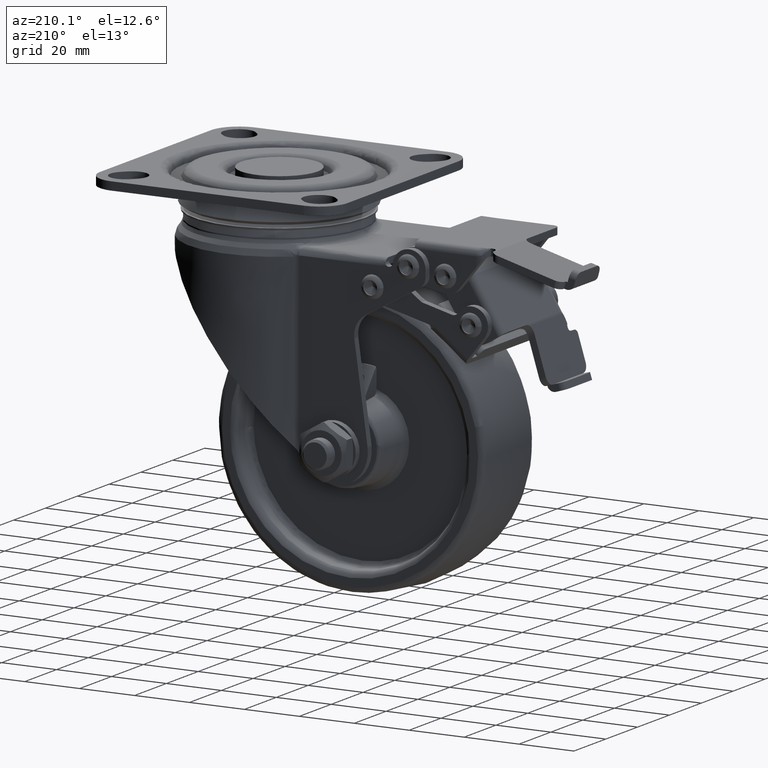
[diagram: clean part render]
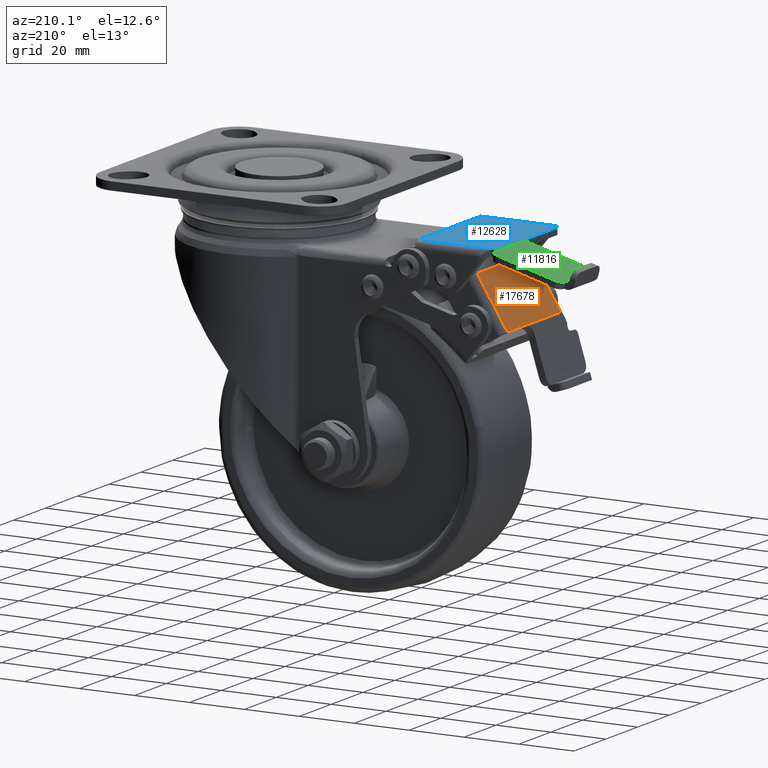
[diagram: same view with three faces highlighted in distinct colors, each labeled with its STEP entity id]
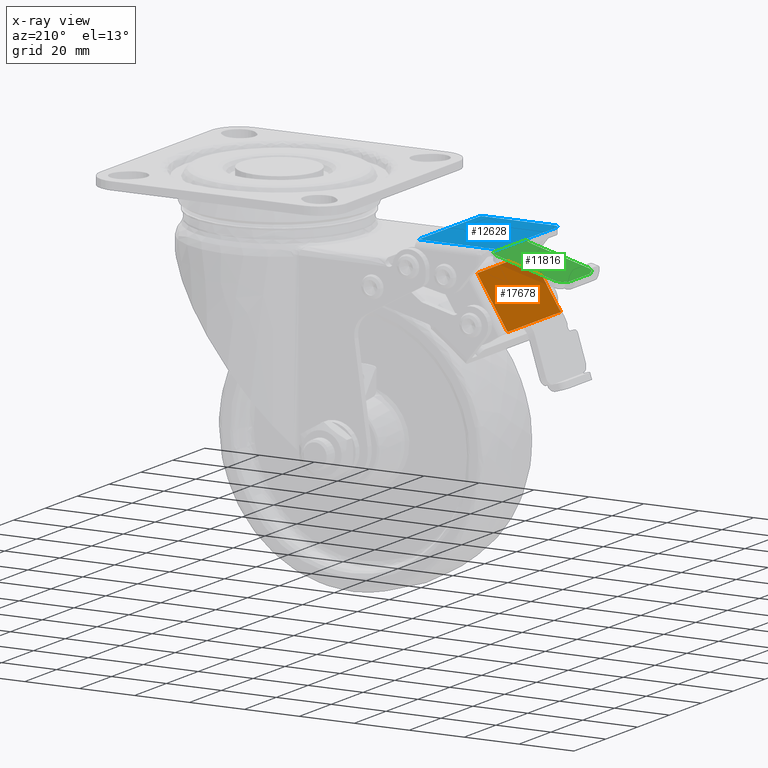
[diagram: x-ray of the same camera — body ghosted, the three highlighted faces saturated]
A machine part, auxiliary view with three faces highlighted in distinct colors.
The next image is the same camera in x-ray (body ghosted, the three faces saturated) — at least one of them is partly hidden behind the body in this view.
Their STEP definitions:

[orange] entity #17678 — the highlighted face is a freeform B-spline surface patch.
#15594=CARTESIAN_POINT('',(-92.926896708605796,-16.489999999999998,-39.738462908418697));
#15595=VERTEX_POINT('',#15594);
#15741=CARTESIAN_POINT('',(-92.926896708605796,5.338428767809099,-39.738462908418697));
#15742=VERTEX_POINT('',#15741);
#15743=CARTESIAN_POINT('',(-92.926896708605796,5.338428767809099,-39.738462908418697));
#15744=CARTESIAN_POINT('',(-92.926896708605796,-16.489999999999998,-39.738462908418697));
#15745=QUASI_UNIFORM_CURVE('',1,(#15743,#15744),.UNSPECIFIED.,.F.,.U.);
#15746=EDGE_CURVE('',#15742,#15595,#15745,.T.);
#15917=CARTESIAN_POINT('',(-81.828292846612598,-16.489999999999998,-21.976984539995051));
#15918=VERTEX_POINT('',#15917);
#16056=CARTESIAN_POINT('',(-92.926896708605796,-16.489999999999998,-39.738462908418697));
#16057=CARTESIAN_POINT('',(-81.828292846612598,-16.489999999999998,-21.976984539995051));
#16058=QUASI_UNIFORM_CURVE('',1,(#16056,#16057),.UNSPECIFIED.,.F.,.U.);
#16059=EDGE_CURVE('',#15595,#15918,#16058,.T.);
#17174=CARTESIAN_POINT('',(-81.828292846612598,16.989999999999998,-21.976984539995051));
#17175=VERTEX_POINT('',#17174);
#17176=CARTESIAN_POINT('',(-81.828292846612598,16.989999999999998,-21.976984539995051));
#17177=CARTESIAN_POINT('',(-81.828292846612598,-16.489999999999998,-21.976984539995051));
#17178=QUASI_UNIFORM_CURVE('',1,(#17176,#17177),.UNSPECIFIED.,.F.,.U.);
#17179=EDGE_CURVE('',#17175,#15918,#17178,.T.);
#17602=CARTESIAN_POINT('',(-92.924919414313393,16.989999999999998,-39.735298576198247));
#17603=VERTEX_POINT('',#17602);
#17619=CARTESIAN_POINT('',(-81.828292846612598,16.989999999999998,-21.976984539995051));
#17620=CARTESIAN_POINT('',(-92.924919414313393,16.989999999999998,-39.735298576198247));
#17621=QUASI_UNIFORM_CURVE('',1,(#17619,#17620),.UNSPECIFIED.,.F.,.U.);
#17622=EDGE_CURVE('',#17175,#17603,#17621,.T.);
#17647=CARTESIAN_POINT('',(-93.481271950001172,-18.162325935109269,-40.625648718496251));
#17648=CARTESIAN_POINT('',(-81.273917307529544,-18.162325935109269,-21.089798253517490));
#17649=CARTESIAN_POINT('',(-93.481271950001172,18.662326833112839,-40.625648718496251));
#17650=CARTESIAN_POINT('',(-81.273917307529544,18.662326833112839,-21.089798253517490));
#17651=B_SPLINE_SURFACE_WITH_KNOTS('',1,1,((#17647,#17649),(#17648,#17650)),.UNSPECIFIED.,.F.,.F.,.U.,(2,2),(2,2),(0.0,23.036253183994241),(0.0,36.824652768222109),.UNSPECIFIED.);
#17652=CARTESIAN_POINT('',(-92.924919414313493,5.500000000000000,-39.735298576198304));
#17653=VERTEX_POINT('',#17652);
#17654=CARTESIAN_POINT('',(-92.924919414313393,16.989999999999998,-39.735298576198247));
#17655=CARTESIAN_POINT('',(-92.924919414313493,5.500000000000000,-39.735298576198304));
#17656=QUASI_UNIFORM_CURVE('',1,(#17654,#17655),.UNSPECIFIED.,.F.,.U.);
#17657=EDGE_CURVE('',#17603,#17653,#17656,.T.);
#17658=ORIENTED_EDGE('',*,*,#17657,.T.);
#17659=CARTESIAN_POINT('',(-92.924919414313365,5.500000000000000,-39.735298576198197));
#17660=CARTESIAN_POINT('',(-92.924919414313365,5.419171298601151,-39.735298576198197));
#17661=CARTESIAN_POINT('',(-92.926896708605810,5.338428767809099,-39.738462908418697));
#17669=(BOUNDED_CURVE()B_SPLINE_CURVE(2,(#17659,#17660,#17661),.UNSPECIFIED.,.F.,.U.)CURVE()GEOMETRIC_REPRESENTATION_ITEM()QUASI_UNIFORM_CURVE()RATIONAL_B_SPLINE_CURVE((1.0,0.999733442169759,1.0))REPRESENTATION_ITEM(''));
#17670=EDGE_CURVE('',#17653,#15742,#17669,.T.);
#17671=ORIENTED_EDGE('',*,*,#17670,.T.);
#17672=ORIENTED_EDGE('',*,*,#15746,.T.);
#17673=ORIENTED_EDGE('',*,*,#16059,.T.);
#17674=ORIENTED_EDGE('',*,*,#17179,.F.);
#17675=ORIENTED_EDGE('',*,*,#17622,.T.);
#17676=EDGE_LOOP('',(#17658,#17671,#17672,#17673,#17674,#17675));
#17677=FACE_OUTER_BOUND('',#17676,.T.);
#17678=ADVANCED_FACE('',(#17677),#17651,.T.);

[blue] entity #12628 — the highlighted face is a freeform B-spline surface patch.
#12351=CARTESIAN_POINT('',(-92.448516706565556,-21.553380074717150,-12.800003254672649));
#12352=CARTESIAN_POINT('',(-91.148513334358199,-21.553380074717150,-12.800001792344480));
#12353=CARTESIAN_POINT('',(-89.848509962150800,-21.553380074717150,-12.800000608998131));
#12354=CARTESIAN_POINT('',(-88.548506589943386,-21.553380074717161,-12.800000684872909));
#12355=CARTESIAN_POINT('',(-88.445089834938216,-21.553380074717161,-12.800000400009420));
#12356=CARTESIAN_POINT('',(-88.341673079933017,-21.553380074717161,-12.800000144731790));
#12357=CARTESIAN_POINT('',(-88.238256324927761,-21.553380074717161,-12.800000300038541));
#12358=CARTESIAN_POINT('',(-88.086494589790362,-21.553380074717161,-12.799999475303590));
#12359=CARTESIAN_POINT('',(-87.782971119515494,-21.553380074717150,-12.799999648287219));
#12360=CARTESIAN_POINT('',(-87.327685914103171,-21.553380074717161,-12.800000221750221));
#12361=CARTESIAN_POINT('',(-86.872400708690847,-21.553380074717172,-12.800000289422989));
#12362=CARTESIAN_POINT('',(-85.961830297866186,-21.553380074717161,-12.800000409412039));
#12363=CARTESIAN_POINT('',(-83.988927741079493,-21.553380074717172,-12.799999902945830));
#12364=CARTESIAN_POINT('',(-79.739599157231254,-21.553380074717161,-12.799996548530260));
#12365=CARTESIAN_POINT('',(-71.724758037286861,-21.553380074717179,-12.799986696909670));
#12366=CARTESIAN_POINT('',(-64.924010798442026,-21.553380074717150,-12.799994705632271));
#12367=CARTESIAN_POINT('',(-60.551451321796101,-21.553380074717150,-12.799995424689151));
#12368=CARTESIAN_POINT('',(-92.448516706565471,-14.062910271515991,-12.799991244901920));
#12369=CARTESIAN_POINT('',(-91.148513334358157,-14.062910271515991,-12.799986848815880));
#12370=CARTESIAN_POINT('',(-89.848509962150885,-14.062910271515999,-12.799982019413781));
#12371=CARTESIAN_POINT('',(-88.548506589943514,-14.062910271515999,-12.799979644204670));
#12372=CARTESIAN_POINT('',(-88.445089834938315,-14.062910271515999,-12.799978500105929));
#12373=CARTESIAN_POINT('',(-88.341673079933145,-14.062910271515999,-12.799977429046020));
#12374=CARTESIAN_POINT('',(-88.238256324927889,-14.062910271515999,-12.799976378183461));
#12375=CARTESIAN_POINT('',(-88.086494589790448,-14.062910271515999,-12.799974626386780));
#12376=CARTESIAN_POINT('',(-87.782971119515580,-14.062910271515999,-12.799974164914740));
#12377=CARTESIAN_POINT('',(-87.327685914103228,-14.062910271515999,-12.799974229766470));
#12378=CARTESIAN_POINT('',(-86.872400708690904,-14.062910271515999,-12.799972621656970));
#12379=CARTESIAN_POINT('',(-85.961830297866271,-14.062910271515999,-12.799968921903130));
#12380=CARTESIAN_POINT('',(-83.988927741079550,-14.062910271515991,-12.799958704358239));
#12381=CARTESIAN_POINT('',(-79.739599157231311,-14.062910271515969,-12.799924120657510));
#12382=CARTESIAN_POINT('',(-71.724758037286847,-14.062910271516021,-12.799954601302501));
#12383=CARTESIAN_POINT('',(-64.924010798442126,-14.062910271515991,-12.799999300975280));
#12384=CARTESIAN_POINT('',(-60.551451321796193,-14.062910271515991,-12.799994847423861));
#12385=CARTESIAN_POINT('',(-92.448516706565641,-2.486399821839746,-12.800007727671710));
#12386=CARTESIAN_POINT('',(-91.148513334358171,-2.486399821839745,-12.800000212391510));
#12387=CARTESIAN_POINT('',(-89.848509962150672,-2.486399821839743,-12.799991419989681));
#12388=CARTESIAN_POINT('',(-88.548506589943315,-2.486399821839745,-12.800003496332179));
#12389=CARTESIAN_POINT('',(-88.445089834938102,-2.486399821839744,-12.800008715635959));
#12390=CARTESIAN_POINT('',(-88.341673079932917,-2.486399821839745,-12.800013452575570));
#12391=CARTESIAN_POINT('',(-88.238256324927704,-2.486399821839745,-12.800018028712730));
#12392=CARTESIAN_POINT('',(-88.086494589790263,-2.486399821839745,-12.800026071003650));
#12393=CARTESIAN_POINT('',(-87.782971119515395,-2.486399821839746,-12.800022762090309));
#12394=CARTESIAN_POINT('',(-87.327685914103071,-2.486399821839747,-12.800012374302140));
#12395=CARTESIAN_POINT('',(-86.872400708690776,-2.486399821839748,-12.800011880645229));
#12396=CARTESIAN_POINT('',(-85.961830297866143,-2.486399821839750,-12.800012106637469));
#12397=CARTESIAN_POINT('',(-83.988927741079451,-2.486399821839758,-12.800021388760840));
#12398=CARTESIAN_POINT('',(-79.739599157231240,-2.486399821839765,-12.800111722636039));
#12399=CARTESIAN_POINT('',(-71.724758037286961,-2.486399821839743,-12.800241105627300));
#12400=CARTESIAN_POINT('',(-64.924010798442012,-2.486399821839752,-12.800036539097070));
#12401=CARTESIAN_POINT('',(-60.551451321796151,-2.486399821839744,-12.799968073387721));
#12402=CARTESIAN_POINT('',(-92.448516706565641,10.111620789455269,-12.799809031613609));
#12403=CARTESIAN_POINT('',(-91.148513334358228,10.111620789455269,-12.799997344229601));
#12404=CARTESIAN_POINT('',(-89.848509962150857,10.111620789455269,-12.800125081137390));
#12405=CARTESIAN_POINT('',(-88.548506589943457,10.111620789455269,-12.800156229851281));
#12406=CARTESIAN_POINT('',(-88.445089834938258,10.111620789455269,-12.800149408089160));
#12407=CARTESIAN_POINT('',(-88.341673079933059,10.111620789455269,-12.800143327114460));
#12408=CARTESIAN_POINT('',(-88.238256324927846,10.111620789455269,-12.800137292803781));
#12409=CARTESIAN_POINT('',(-88.086494589790405,10.111620789455269,-12.800125531550631));
#12410=CARTESIAN_POINT('',(-87.782971119515523,10.111620789455269,-12.800143139085110));
#12411=CARTESIAN_POINT('',(-87.327685914103213,10.111620789455269,-12.800177505623649));
#12412=CARTESIAN_POINT('',(-86.872400708690904,10.111620789455269,-12.800187056939180));
#12413=CARTESIAN_POINT('',(-85.961830297866257,10.111620789455261,-12.800193478881869));
#12414=CARTESIAN_POINT('',(-83.988927741079564,10.111620789455269,-12.800175084556550));
#12415=CARTESIAN_POINT('',(-79.739599157231297,10.111620789455261,-12.799711695243911));
#12416=CARTESIAN_POINT('',(-71.724758037286918,10.111620789455261,-12.799884385752870));
#12417=CARTESIAN_POINT('',(-64.924010798442083,10.111620789455261,-12.799970187887171));
#12418=CARTESIAN_POINT('',(-60.551451321796200,10.111620789455269,-12.800008162696320));
#12419=CARTESIAN_POINT('',(-92.448516706565613,15.729926678358479,-12.799669861854980));
#12420=CARTESIAN_POINT('',(-91.148513334358228,15.729926678358479,-12.799965378341220));
#12421=CARTESIAN_POINT('',(-89.848509962150871,15.729926678358471,-12.800296095294570));
#12422=CARTESIAN_POINT('',(-88.548506589943415,15.729926678358471,-12.800433152265180));
#12423=CARTESIAN_POINT('',(-88.445089834938202,15.729926678358479,-12.800466701378900));
#12424=CARTESIAN_POINT('',(-88.341673079933017,15.729926678358471,-12.800495819336209));
#12425=CARTESIAN_POINT('',(-88.238256324927818,15.729926678358471,-12.800522171241330));
#12426=CARTESIAN_POINT('',(-88.086494589790348,15.729926678358471,-12.800567942774331));
#12427=CARTESIAN_POINT('',(-87.782971119515466,15.729926678358471,-12.800547662638181));
#12428=CARTESIAN_POINT('',(-87.327685914103157,15.729926678358471,-12.800464346874410));
#12429=CARTESIAN_POINT('',(-86.872400708690847,15.729926678358471,-12.800409355669180));
#12430=CARTESIAN_POINT('',(-85.961830297866214,15.729926678358471,-12.800277775661661));
#12431=CARTESIAN_POINT('',(-83.988927741079493,15.729926678358471,-12.799781950128720));
#12432=CARTESIAN_POINT('',(-79.739599157231339,15.729926678358490,-12.799716980132811));
#12433=CARTESIAN_POINT('',(-71.724758037286790,15.729926678358430,-12.800020029500320));
#12434=CARTESIAN_POINT('',(-64.924010798442097,15.729926678358510,-12.799971886053410));
#12435=CARTESIAN_POINT('',(-60.551451321796172,15.729926678358479,-12.799999222254760));
#12436=CARTESIAN_POINT('',(-92.448516706565556,17.772947001596009,-12.799669638770730));
#12437=CARTESIAN_POINT('',(-91.148513334358128,17.772947001596009,-12.799942374172421));
#12438=CARTESIAN_POINT('',(-89.848509962150743,17.772947001596009,-12.800206972193809));
#12439=CARTESIAN_POINT('',(-88.548506589943386,17.772947001596020,-12.800733306774720));
#12440=CARTESIAN_POINT('',(-88.445089834938202,17.772947001596009,-12.800674783139840));
#12441=CARTESIAN_POINT('',(-88.341673079932988,17.772947001596009,-12.800623318988089));
#12442=CARTESIAN_POINT('',(-88.238256324927775,17.772947001596009,-12.800570354863730));
#12443=CARTESIAN_POINT('',(-88.086494589790348,17.772947001596009,-12.800466572349050));
#12444=CARTESIAN_POINT('',(-87.782971119515437,17.772947001596009,-12.800619307853680));
#12445=CARTESIAN_POINT('',(-87.327685914103157,17.772947001596009,-12.800852917143070));
#12446=CARTESIAN_POINT('',(-86.872400708690847,17.772947001596009,-12.800789724201181));
#12447=CARTESIAN_POINT('',(-85.961830297866129,17.772947001595998,-12.800379518338010));
#12448=CARTESIAN_POINT('',(-83.988927741079493,17.772947001595998,-12.799365244253110));
#12449=CARTESIAN_POINT('',(-79.739599157231339,17.772947001596020,-12.800064383518180));
#12450=CARTESIAN_POINT('',(-71.724758037286747,17.772947001595949,-12.799924313873881));
#12451=CARTESIAN_POINT('',(-64.924010798442183,17.772947001596052,-12.799995914373779));
#12452=CARTESIAN_POINT('',(-60.551451321796179,17.772947001596009,-12.800005733925540));
#12453=CARTESIAN_POINT('',(-92.448516706565584,19.305212244024158,-12.799687119705441));
#12454=CARTESIAN_POINT('',(-91.148513334358199,19.305212244024158,-12.800005762842121));
#12455=CARTESIAN_POINT('',(-89.848509962150857,19.305212244024169,-12.800276187554379));
#12456=CARTESIAN_POINT('',(-88.548506589943457,19.305212244024158,-12.799605331533749));
#12457=CARTESIAN_POINT('',(-88.445089834938145,19.305212244024169,-12.800265279724639));
#12458=CARTESIAN_POINT('',(-88.341673079933031,19.305212244024158,-12.800453956883461));
#12459=CARTESIAN_POINT('',(-88.238256324927775,19.305212244024158,-12.800980669567680));
#12460=CARTESIAN_POINT('',(-88.086494589790348,19.305212244024151,-12.800970492596070));
#12461=CARTESIAN_POINT('',(-87.782971119515381,19.305212244024140,-12.801083886655681));
#12462=CARTESIAN_POINT('',(-87.327685914103114,19.305212244024158,-12.800748595777520));
#12463=CARTESIAN_POINT('',(-86.872400708690762,19.305212244024140,-12.800807796012551));
#12464=CARTESIAN_POINT('',(-85.961830297866300,19.305212244024140,-12.800352265725630));
#12465=CARTESIAN_POINT('',(-83.988927741079280,19.305212244024119,-12.799586348666240));
#12466=CARTESIAN_POINT('',(-79.739599157231382,19.305212244024180,-12.800125452883311));
#12467=CARTESIAN_POINT('',(-71.724758037286733,19.305212244024091,-12.799940599758299));
#12468=CARTESIAN_POINT('',(-64.924010798442168,19.305212244024190,-12.799996933584110));
#12469=CARTESIAN_POINT('',(-60.551451321796058,19.305212244024119,-12.799994630488600));
#12470=CARTESIAN_POINT('',(-92.448516706565641,20.837477486452290,-12.799750504229561));
#12471=CARTESIAN_POINT('',(-91.148513334358228,20.837477486452311,-12.799966121198370));
#12472=CARTESIAN_POINT('',(-89.848509962150700,20.837477486452361,-12.799977421032350));
#12473=CARTESIAN_POINT('',(-88.548506589943386,20.837477486452318,-12.800700845089800));
#12474=CARTESIAN_POINT('',(-88.445089834938202,20.837477486452318,-12.800587854465061));
#12475=CARTESIAN_POINT('',(-88.341673079932988,20.837477486452318,-12.800463371803501));
#12476=CARTESIAN_POINT('',(-88.238256324927804,20.837477486452318,-12.800334705059949));
#12477=CARTESIAN_POINT('',(-88.086494589790362,20.837477486452318,-12.800117960182950));
#12478=CARTESIAN_POINT('',(-87.782971119515466,20.837477486452318,-12.800058573811340));
#12479=CARTESIAN_POINT('',(-87.327685914103228,20.837477486452329,-12.800213578544760));
#12480=CARTESIAN_POINT('',(-86.872400708690947,20.837477486452340,-12.800273171383299));
#12481=CARTESIAN_POINT('',(-85.961830297866015,20.837477486452318,-12.800161868225310));
#12482=CARTESIAN_POINT('',(-83.988927741079564,20.837477486452329,-12.800520735452681));
#12483=CARTESIAN_POINT('',(-79.739599157231282,20.837477486452311,-12.799924823003940));
#12484=CARTESIAN_POINT('',(-71.724758037286790,20.837477486452261,-12.800063272155921));
#12485=CARTESIAN_POINT('',(-64.924010798442112,20.837477486452329,-12.799983090587601));
#12486=CARTESIAN_POINT('',(-60.551451321796108,20.837477486452290,-12.799997136575190));
#12487=CARTESIAN_POINT('',(-92.448516706565556,22.198813083151538,-12.799725018740350));
#12488=CARTESIAN_POINT('',(-91.148513334358128,22.198813083151549,-12.800035011742780));
#12489=CARTESIAN_POINT('',(-89.848509962150672,22.198813083151538,-12.800347820577979));
#12490=CARTESIAN_POINT('',(-88.548506589943358,22.198813083151549,-12.800203613273700));
#12491=CARTESIAN_POINT('',(-88.445089834938159,22.198813083151549,-12.800182869366990));
#12492=CARTESIAN_POINT('',(-88.341673079932974,22.198813083151549,-12.800159280525090));
#12493=CARTESIAN_POINT('',(-88.238256324927775,22.198813083151549,-12.800133959102860));
#12494=CARTESIAN_POINT('',(-88.086494589790320,22.198813083151549,-12.800094862375470));
#12495=CARTESIAN_POINT('',(-87.782971119515452,22.198813083151549,-12.800036607335350));
#12496=CARTESIAN_POINT('',(-87.327685914103142,22.198813083151549,-12.799963434550120));
#12497=CARTESIAN_POINT('',(-86.872400708690847,22.198813083151549,-12.799901388334090));
#12498=CARTESIAN_POINT('',(-85.961830297866157,22.198813083151549,-12.799815290572150));
#12499=CARTESIAN_POINT('',(-83.988927741079465,22.198813083151538,-12.800181475746751));
#12500=CARTESIAN_POINT('',(-79.739599157231311,22.198813083151549,-12.800037876770389));
#12501=CARTESIAN_POINT('',(-71.724758037286776,22.198813083151499,-12.800055053999760));
#12502=CARTESIAN_POINT('',(-64.924010798442083,22.198813083151560,-12.799988998192910));
#12503=CARTESIAN_POINT('',(-60.551451321796080,22.198813083151510,-12.799999799649910));
#12504=CARTESIAN_POINT('',(-92.448516706565542,23.049393599041402,-12.799703746032790));
#12505=CARTESIAN_POINT('',(-91.148513334358114,23.049393599041402,-12.799988777401230));
#12506=CARTESIAN_POINT('',(-89.848509962150700,23.049393599041391,-12.800264525442181));
#12507=CARTESIAN_POINT('',(-88.548506589943344,23.049393599041402,-12.800026061817190));
#12508=CARTESIAN_POINT('',(-88.445089834938159,23.049393599041402,-12.800016097427021));
#12509=CARTESIAN_POINT('',(-88.341673079932960,23.049393599041402,-12.800004749112521));
#12510=CARTESIAN_POINT('',(-88.238256324927761,23.049393599041402,-12.799992344130461));
#12511=CARTESIAN_POINT('',(-88.086494589790306,23.049393599041402,-12.799975108541050));
#12512=CARTESIAN_POINT('',(-87.782971119515437,23.049393599041402,-12.799922593303540));
#12513=CARTESIAN_POINT('',(-87.327685914103128,23.049393599041402,-12.799834046786710));
#12514=CARTESIAN_POINT('',(-86.872400708690805,23.049393599041402,-12.799766445689251));
#12515=CARTESIAN_POINT('',(-85.961830297866157,23.049393599041402,-12.799684560900189));
#12516=CARTESIAN_POINT('',(-83.988927741079451,23.049393599041391,-12.799982341799669));
#12517=CARTESIAN_POINT('',(-79.739599157231297,23.049393599041402,-12.800067713091130));
#12518=CARTESIAN_POINT('',(-71.724758037286790,23.049393599041348,-12.800061319713279));
#12519=CARTESIAN_POINT('',(-64.924010798442069,23.049393599041402,-12.799992762078601));
#12520=CARTESIAN_POINT('',(-60.551451321796080,23.049393599041370,-12.800001944524620));
#12521=CARTESIAN_POINT('',(-92.448516706565528,23.389219034121862,-12.799693141950019));
#12522=CARTESIAN_POINT('',(-91.148513334358114,23.389219034121862,-12.799962493570280));
#12523=CARTESIAN_POINT('',(-89.848509962150700,23.389219034121862,-12.800209352781559));
#12524=CARTESIAN_POINT('',(-88.548506589943344,23.389219034121862,-12.799967994248981));
#12525=CARTESIAN_POINT('',(-88.445089834938159,23.389219034121869,-12.799959058018510));
#12526=CARTESIAN_POINT('',(-88.341673079932960,23.389219034121869,-12.799949016198910));
#12527=CARTESIAN_POINT('',(-88.238256324927761,23.389219034121869,-12.799938107019180));
#12528=CARTESIAN_POINT('',(-88.086494589790306,23.389219034121869,-12.799923259216159));
#12529=CARTESIAN_POINT('',(-87.782971119515437,23.389219034121869,-12.799873588378320));
#12530=CARTESIAN_POINT('',(-87.327685914103128,23.389219034121869,-12.799788297036230));
#12531=CARTESIAN_POINT('',(-86.872400708690805,23.389219034121869,-12.799723700227711));
#12532=CARTESIAN_POINT('',(-85.961830297866157,23.389219034121862,-12.799643676787190));
#12533=CARTESIAN_POINT('',(-83.988927741079451,23.389219034121851,-12.799910526734269));
#12534=CARTESIAN_POINT('',(-79.739599157231282,23.389219034121862,-12.800073970656889));
#12535=CARTESIAN_POINT('',(-71.724758037286790,23.389219034121819,-12.800065260935190));
#12536=CARTESIAN_POINT('',(-64.924010798442069,23.389219034121869,-12.799994306188230));
#12537=CARTESIAN_POINT('',(-60.551451321796073,23.389219034121830,-12.800002850198229));
#12538=B_SPLINE_SURFACE_WITH_KNOTS('',3,3,((#12351,#12368,#12385,#12402,#12419,#12436,#12453,#12470,#12487,#12504,#12521),(#12352,#12369,#12386,#12403,#12420,#12437,#12454,#12471,#12488,#12505,#12522),(#12353,#12370,#12387,#12404,#12421,#12438,#12455,#12472,#12489,#12506,#12523),(#12354,#12371,#12388,#12405,#12422,#12439,#12456,#12473,#12490,#12507,#12524),(#12355,#12372,#12389,#12406,#12423,#12440,#12457,#12474,#12491,#12508,#12525),(#12356,#12373,#12390,#12407,#12424,#12441,#12458,#12475,#12492,#12509,#12526),(#12357,#12374,#12391,#12408,#12425,#12442,#12459,#12476,#12493,#12510,#12527),(#12358,#12375,#12392,#12409,#12426,#12443,#12460,#12477,#12494,#12511,#12528),(#12359,#12376,#12393,#12410,#12427,#12444,#12461,#12478,#12495,#12512,#12529),(#12360,#12377,#12394,#12411,#12428,#12445,#12462,#12479,#12496,#12513,#12530),(#12361,#12378,#12395,#12412,#12429,#12446,#12463,#12480,#12497,#12514,#12531),(#12362,#12379,#12396,#12413,#12430,#12447,#12464,#12481,#12498,#12515,#12532),(#12363,#12380,#12397,#12414,#12431,#12448,#12465,#12482,#12499,#12516,#12533),(#12364,#12381,#12398,#12415,#12432,#12449,#12466,#12483,#12500,#12517,#12534),(#12365,#12382,#12399,#12416,#12433,#12450,#12467,#12484,#12501,#12518,#12535),(#12366,#12383,#12400,#12417,#12434,#12451,#12468,#12485,#12502,#12519,#12536),(#12367,#12384,#12401,#12418,#12435,#12452,#12469,#12486,#12503,#12520,#12537)),.UNSPECIFIED.,.F.,.F.,.U.,(4,3,3,1,1,1,1,1,1,1,4),(4,1,1,1,1,1,1,1,4),(1.451448329496384,5.351458446118584,5.661708711134210,6.116993916546522,6.572279121958834,7.027564327371146,7.482849532783458,9.303990354432706,12.946271997731200,20.230835284328190,33.348513714265820),(2.044834469246864,24.516243878850400,36.774365818275598,39.838896303131897,41.371161545560042,42.903426787988202,44.435692030416348,45.967957272844501,46.987433578085898),.UNSPECIFIED.);
#12539=CARTESIAN_POINT('',(-90.999968214601807,-17.028020903779051,-12.799995000000180));
#12540=VERTEX_POINT('',#12539);
#12541=CARTESIAN_POINT('',(-88.239012999999801,-19.500000000000000,-12.799995000000180));
#12542=VERTEX_POINT('',#12541);
#12543=CARTESIAN_POINT('',(-90.999968214601807,-17.028020903779051,-12.799995000000180));
#12544=CARTESIAN_POINT('',(-90.997748331287170,-17.245102494003429,-12.799995000000180));
#12545=CARTESIAN_POINT('',(-90.927508658071588,-17.743806980995821,-12.799995000000189));
#12546=CARTESIAN_POINT('',(-90.637740000619786,-18.361862949898178,-12.799995000000189));
#12547=CARTESIAN_POINT('',(-90.224548905960731,-18.841490336629271,-12.799995000000161));
#12548=CARTESIAN_POINT('',(-89.790950588052212,-19.172784629049271,-12.799995000000200));
#12549=CARTESIAN_POINT('',(-89.135848627474289,-19.474827690494131,-12.799995000000211));
#12550=CARTESIAN_POINT('',(-88.584699793233497,-19.535155066343670,-12.799995000000161));
#12551=CARTESIAN_POINT('',(-88.239012999999801,-19.500000000000000,-12.799995000000180));
#12552=B_SPLINE_CURVE_WITH_KNOTS('',3,(#12543,#12544,#12545,#12546,#12547,#12548,#12549,#12550,#12551),.UNSPECIFIED.,.F.,.U.,(4,1,1,1,1,1,4),(0.000000340576039,0.651322536007686,1.498115531417419,2.019212128376124,2.540208302821007,3.126460690834722,4.168614116784878),.UNSPECIFIED.);
#12553=EDGE_CURVE('',#12540,#12542,#12552,.T.);
#12554=ORIENTED_EDGE('',*,*,#12553,.T.);
#12555=CARTESIAN_POINT('',(-62.0,-19.500000000000000,-12.799995000000139));
#12556=VERTEX_POINT('',#12555);
#12557=CARTESIAN_POINT('',(-88.239012999999801,-19.500000000000000,-12.799995000000180));
#12558=CARTESIAN_POINT('',(-62.0,-19.500000000000000,-12.799995000000139));
#12559=QUASI_UNIFORM_CURVE('',1,(#12557,#12558),.UNSPECIFIED.,.F.,.U.);
#12560=EDGE_CURVE('',#12542,#12556,#12559,.T.);
#12561=ORIENTED_EDGE('',*,*,#12560,.T.);
#12562=CARTESIAN_POINT('',(-62.0,19.500000000000000,-12.799995000000139));
#12563=VERTEX_POINT('',#12562);
#12564=CARTESIAN_POINT('',(-62.0,-19.500000000000000,-12.799995000000139));
#12565=CARTESIAN_POINT('',(-62.0,19.500000000000000,-12.799995000000139));
#12566=QUASI_UNIFORM_CURVE('',1,(#12564,#12565),.UNSPECIFIED.,.F.,.U.);
#12567=EDGE_CURVE('',#12556,#12563,#12566,.T.);
#12568=ORIENTED_EDGE('',*,*,#12567,.T.);
#12569=CARTESIAN_POINT('',(-84.469598002276712,19.500000000000000,-12.799995000000139));
#12570=VERTEX_POINT('',#12569);
#12571=CARTESIAN_POINT('',(-62.0,19.500000000000000,-12.799995000000139));
#12572=CARTESIAN_POINT('',(-84.469598002276712,19.500000000000000,-12.799995000000139));
#12573=QUASI_UNIFORM_CURVE('',1,(#12571,#12572),.UNSPECIFIED.,.F.,.U.);
#12574=EDGE_CURVE('',#12563,#12570,#12573,.T.);
#12575=ORIENTED_EDGE('',*,*,#12574,.T.);
#12576=CARTESIAN_POINT('',(-88.238256324927789,19.338223943087900,-12.800797894312900));
#12577=VERTEX_POINT('',#12576);
#12578=CARTESIAN_POINT('',(-84.469598002276712,19.500000000000000,-12.799995000000139));
#12579=CARTESIAN_POINT('',(-84.510611802100485,19.500616139585180,-12.800003716166319));
#12580=CARTESIAN_POINT('',(-84.591649847670027,19.514225210517459,-12.800020825457350));
#12581=CARTESIAN_POINT('',(-84.730477790065677,19.550694158128561,-12.800050016047370));
#12582=CARTESIAN_POINT('',(-84.867159091358559,19.594986652379241,-12.800078678963120));
#12583=CARTESIAN_POINT('',(-85.002308438811724,19.643236172396641,-12.800106980099571));
#12584=CARTESIAN_POINT('',(-85.098765578461396,19.677981331809040,-12.800127176028280));
#12585=CARTESIAN_POINT('',(-85.176723044603960,19.703354790439700,-12.800143523183721));
#12586=CARTESIAN_POINT('',(-85.234942643756753,19.723251955807768,-12.800155722816610));
#12587=CARTESIAN_POINT('',(-85.293886381683592,19.740853342935718,-12.800168097328701));
#12588=CARTESIAN_POINT('',(-85.352522113172469,19.759406165445618,-12.800180397685310));
#12589=CARTESIAN_POINT('',(-85.510040442628664,19.805002999833182,-12.800213479823030));
#12590=CARTESIAN_POINT('',(-85.789282235810816,19.872778517514050,-12.800272245222869));
#12591=CARTESIAN_POINT('',(-86.279585887696868,19.926273241728470,-12.800376023822940));
#12592=CARTESIAN_POINT('',(-86.875728592613783,19.888803159120489,-12.800503137209800));
#12593=CARTESIAN_POINT('',(-87.573609225670253,19.708408938532781,-12.800653186003039));
#12594=CARTESIAN_POINT('',(-88.015229251897509,19.483956622441848,-12.800749140662051));
#12595=CARTESIAN_POINT('',(-88.238256324927789,19.338223943087900,-12.800797894312900));
#12596=B_SPLINE_CURVE_WITH_KNOTS('',3,(#12578,#12579,#12580,#12581,#12582,#12583,#12584,#12585,#12586,#12587,#12588,#12589,#12590,#12591,#12592,#12593,#12594,#12595),.UNSPECIFIED.,.F.,.U.,(4,1,1,1,1,1,1,1,1,1,1,1,1,1,1,4),(0.000061212985000,0.122784190894617,0.245940751944831,0.430524702352660,0.553627261773284,0.676516861224178,0.738046593192536,0.799576325160896,0.861076819424958,0.922577313689020,0.984058577735867,1.353119112212481,1.783449419378578,2.459870095958964,3.136410849013124,3.935897233625082),.UNSPECIFIED.);
#12597=EDGE_CURVE('',#12570,#12577,#12596,.T.);
#12598=ORIENTED_EDGE('',*,*,#12597,.T.);
#12599=CARTESIAN_POINT('',(-88.548506589943401,19.338473225333651,-12.799995000000139));
#12600=VERTEX_POINT('',#12599);
#12601=CARTESIAN_POINT('',(-88.548506589943401,19.338473225333651,-12.799995000000139));
#12602=CARTESIAN_POINT('',(-88.238256324927789,19.338223943087900,-12.800797894312900));
#12603=QUASI_UNIFORM_CURVE('',1,(#12601,#12602),.UNSPECIFIED.,.F.,.U.);
#12604=EDGE_CURVE('',#12600,#12577,#12603,.T.);
#12605=ORIENTED_EDGE('',*,*,#12604,.F.);
#12606=CARTESIAN_POINT('',(-90.999968214601807,21.348232567261700,-12.799995000000260));
#12607=VERTEX_POINT('',#12606);
#12608=CARTESIAN_POINT('',(-88.548506589943401,19.338473225333701,-12.799995000000180));
#12609=CARTESIAN_POINT('',(-90.598058703784872,19.338473225333704,-12.799995000000180));
#12610=CARTESIAN_POINT('',(-90.999968214601864,21.348232567261689,-12.799995000000180));
#12618=(BOUNDED_CURVE()B_SPLINE_CURVE(2,(#12608,#12609,#12610),.UNSPECIFIED.,.F.,.U.)CURVE()GEOMETRIC_REPRESENTATION_ITEM()QUASI_UNIFORM_CURVE()RATIONAL_B_SPLINE_CURVE((1.0,0.773335717275752,1.0))REPRESENTATION_ITEM(''));
#12619=EDGE_CURVE('',#12600,#12607,#12618,.T.);
#12620=ORIENTED_EDGE('',*,*,#12619,.T.);
#12621=CARTESIAN_POINT('',(-90.999968214601807,-17.028020903779051,-12.799995000000180));
#12622=CARTESIAN_POINT('',(-90.999968214601807,21.348232567261700,-12.799995000000260));
#12623=QUASI_UNIFORM_CURVE('',1,(#12621,#12622),.UNSPECIFIED.,.F.,.U.);
#12624=EDGE_CURVE('',#12540,#12607,#12623,.T.);
#12625=ORIENTED_EDGE('',*,*,#12624,.F.);
#12626=EDGE_LOOP('',(#12554,#12561,#12568,#12575,#12598,#12605,#12620,#12625));
#12627=FACE_OUTER_BOUND('',#12626,.T.);
#12628=ADVANCED_FACE('',(#12627),#12538,.T.);

[green] entity #11816 — the highlighted face is a freeform B-spline surface patch.
#11707=CARTESIAN_POINT('',(-119.029168314216800,1.769433062291799,-20.222223670334131));
#11708=CARTESIAN_POINT('',(-90.355645467390417,1.769433062291799,-12.539184812833859));
#11709=CARTESIAN_POINT('',(-119.029168314216800,26.105164435208870,-20.222223670334131));
#11710=CARTESIAN_POINT('',(-90.355645467390417,26.105164435208870,-12.539184812833859));
#11711=B_SPLINE_SURFACE_WITH_KNOTS('',1,1,((#11707,#11709),(#11708,#11710)),.UNSPECIFIED.,.F.,.F.,.U.,(2,2),(2,2),(0.0,29.685013029024109),(0.0,24.335731372917071),.UNSPECIFIED.);
#11712=CARTESIAN_POINT('',(-91.657803072471808,2.874596904051120,-12.888096508542599));
#11713=VERTEX_POINT('',#11712);
#11714=CARTESIAN_POINT('',(-91.657803072471808,23.812329079264352,-12.888096508542599));
#11715=VERTEX_POINT('',#11714);
#11716=CARTESIAN_POINT('',(-91.657803072471808,2.874596904051120,-12.888096508542599));
#11717=CARTESIAN_POINT('',(-91.657803072471808,23.812329079264352,-12.888096508542599));
#11718=QUASI_UNIFORM_CURVE('',1,(#11716,#11717),.UNSPECIFIED.,.F.,.U.);
#11719=EDGE_CURVE('',#11713,#11715,#11718,.T.);
#11720=ORIENTED_EDGE('',*,*,#11719,.T.);
#11721=CARTESIAN_POINT('',(-94.048506589943301,25.0,-13.528682882237140));
#11722=VERTEX_POINT('',#11721);
#11723=CARTESIAN_POINT('',(-91.657803072471808,23.812329079264352,-12.888096508542599));
#11724=CARTESIAN_POINT('',(-92.558144972048339,24.999999999999993,-13.129342128637425));
#11725=CARTESIAN_POINT('',(-94.048506589943273,25.0,-13.528682882237270));
#11733=(BOUNDED_CURVE()B_SPLINE_CURVE(2,(#11723,#11724,#11725),.UNSPECIFIED.,.F.,.U.)CURVE()GEOMETRIC_REPRESENTATION_ITEM()QUASI_UNIFORM_CURVE()RATIONAL_B_SPLINE_CURVE((1.0,0.895575148462657,1.0))REPRESENTATION_ITEM(''));
#11734=EDGE_CURVE('',#11715,#11722,#11733,.T.);
#11735=ORIENTED_EDGE('',*,*,#11734,.T.);
#11736=CARTESIAN_POINT('',(-115.108408427368600,24.999999999998650,-19.171660378111451));
#11737=VERTEX_POINT('',#11736);
#11738=CARTESIAN_POINT('',(-115.108408427368600,24.999999999998650,-19.171660378111451));
#11739=CARTESIAN_POINT('',(-94.048506589943301,25.0,-13.528682882237140));
#11740=QUASI_UNIFORM_CURVE('',1,(#11738,#11739),.UNSPECIFIED.,.F.,.U.);
#11741=EDGE_CURVE('',#11737,#11722,#11740,.T.);
#11742=ORIENTED_EDGE('',*,*,#11741,.F.);
#11743=CARTESIAN_POINT('',(-117.102020614069000,22.0,-19.705846567197352));
#11744=VERTEX_POINT('',#11743);
#11745=CARTESIAN_POINT('',(-115.108408427368600,24.999999999998650,-19.171660378111451));
#11746=CARTESIAN_POINT('',(-117.336750482131820,24.377160169770580,-19.768742176745420));
#11747=CARTESIAN_POINT('',(-117.102020614069000,22.0,-19.705846567197320));
#11755=(BOUNDED_CURVE()B_SPLINE_CURVE(2,(#11745,#11746,#11747),.UNSPECIFIED.,.F.,.U.)CURVE()GEOMETRIC_REPRESENTATION_ITEM()QUASI_UNIFORM_CURVE()RATIONAL_B_SPLINE_CURVE((1.0,0.761944393072174,1.0))REPRESENTATION_ITEM(''));
#11756=EDGE_CURVE('',#11737,#11744,#11755,.T.);
#11757=ORIENTED_EDGE('',*,*,#11756,.T.);
#11758=CARTESIAN_POINT('',(-117.727011408366000,22.0,-19.873312161983449));
#11759=VERTEX_POINT('',#11758);
#11760=CARTESIAN_POINT('',(-117.102020614069000,22.0,-19.705846567197352));
#11761=CARTESIAN_POINT('',(-117.727011408366000,22.0,-19.873312161983449));
#11762=QUASI_UNIFORM_CURVE('',1,(#11760,#11761),.UNSPECIFIED.,.F.,.U.);
#11763=EDGE_CURVE('',#11744,#11759,#11762,.T.);
#11764=ORIENTED_EDGE('',*,*,#11763,.T.);
#11765=CARTESIAN_POINT('',(-117.727011408366000,6.999999999999780,-19.873312161983449));
#11766=VERTEX_POINT('',#11765);
#11767=CARTESIAN_POINT('',(-117.727011408366000,6.999999999999780,-19.873312161983449));
#11768=CARTESIAN_POINT('',(-117.727011408366000,22.0,-19.873312161983449));
#11769=QUASI_UNIFORM_CURVE('',1,(#11767,#11768),.UNSPECIFIED.,.F.,.U.);
#11770=EDGE_CURVE('',#11766,#11759,#11769,.T.);
#11771=ORIENTED_EDGE('',*,*,#11770,.F.);
#11772=CARTESIAN_POINT('',(-117.102020614069000,6.999999999999770,-19.705846567197302));
#11773=VERTEX_POINT('',#11772);
#11774=CARTESIAN_POINT('',(-117.727011408366000,6.999999999999780,-19.873312161983449));
#11775=CARTESIAN_POINT('',(-117.102020614069000,6.999999999999770,-19.705846567197302));
#11776=QUASI_UNIFORM_CURVE('',1,(#11774,#11775),.UNSPECIFIED.,.F.,.U.);
#11777=EDGE_CURVE('',#11766,#11773,#11776,.T.);
#11778=ORIENTED_EDGE('',*,*,#11777,.T.);
#11779=CARTESIAN_POINT('',(-115.108408427359190,4.000000000000410,-19.171660378108800));
#11780=VERTEX_POINT('',#11779);
#11781=CARTESIAN_POINT('',(-117.102020614069100,6.999999999999779,-19.705846567197341));
#11782=CARTESIAN_POINT('',(-117.336750482132150,4.622839830221314,-19.768742176745505));
#11783=CARTESIAN_POINT('',(-115.108408427359090,4.000000000000432,-19.171660378109170));
#11791=(BOUNDED_CURVE()B_SPLINE_CURVE(2,(#11781,#11782,#11783),.UNSPECIFIED.,.F.,.U.)CURVE()GEOMETRIC_REPRESENTATION_ITEM()QUASI_UNIFORM_CURVE()RATIONAL_B_SPLINE_CURVE((1.0,0.761944393071122,1.0))REPRESENTATION_ITEM(''));
#11792=EDGE_CURVE('',#11773,#11780,#11791,.T.);
#11793=ORIENTED_EDGE('',*,*,#11792,.T.);
#11794=CARTESIAN_POINT('',(-94.0,4.0,-13.515685594901001));
#11795=VERTEX_POINT('',#11794);
#11796=CARTESIAN_POINT('',(-94.0,4.0,-13.515685594901001));
#11797=CARTESIAN_POINT('',(-115.108408427359190,4.000000000000410,-19.171660378108800));
#11798=QUASI_UNIFORM_CURVE('',1,(#11796,#11797),.UNSPECIFIED.,.F.,.U.);
#11799=EDGE_CURVE('',#11795,#11780,#11798,.T.);
#11800=ORIENTED_EDGE('',*,*,#11799,.F.);
#11801=CARTESIAN_POINT('',(-93.999999999999972,4.0,-13.515685594901109));
#11802=CARTESIAN_POINT('',(-92.558528854612490,4.0,-13.129444989547551));
#11803=CARTESIAN_POINT('',(-91.657803072471779,2.874596904050934,-12.888096508542700));
#11811=(BOUNDED_CURVE()B_SPLINE_CURVE(2,(#11801,#11802,#11803),.UNSPECIFIED.,.F.,.U.)CURVE()GEOMETRIC_REPRESENTATION_ITEM()QUASI_UNIFORM_CURVE()RATIONAL_B_SPLINE_CURVE((1.0,0.901350551861921,1.0))REPRESENTATION_ITEM(''));
#11812=EDGE_CURVE('',#11795,#11713,#11811,.T.);
#11813=ORIENTED_EDGE('',*,*,#11812,.T.);
#11814=EDGE_LOOP('',(#11720,#11735,#11742,#11757,#11764,#11771,#11778,#11793,#11800,#11813));
#11815=FACE_OUTER_BOUND('',#11814,.T.);
#11816=ADVANCED_FACE('',(#11815),#11711,.T.);